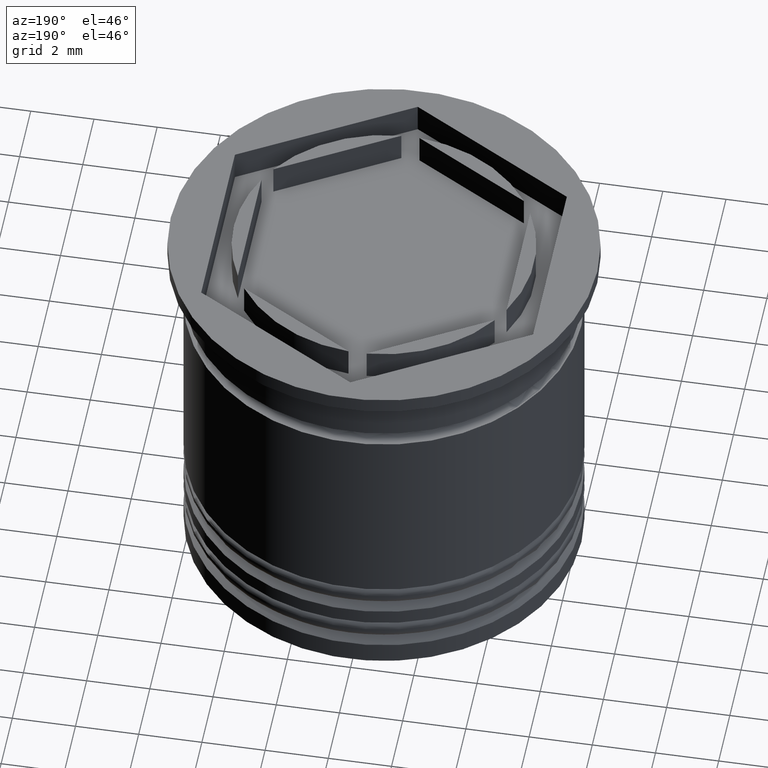
[diagram: clean part render]
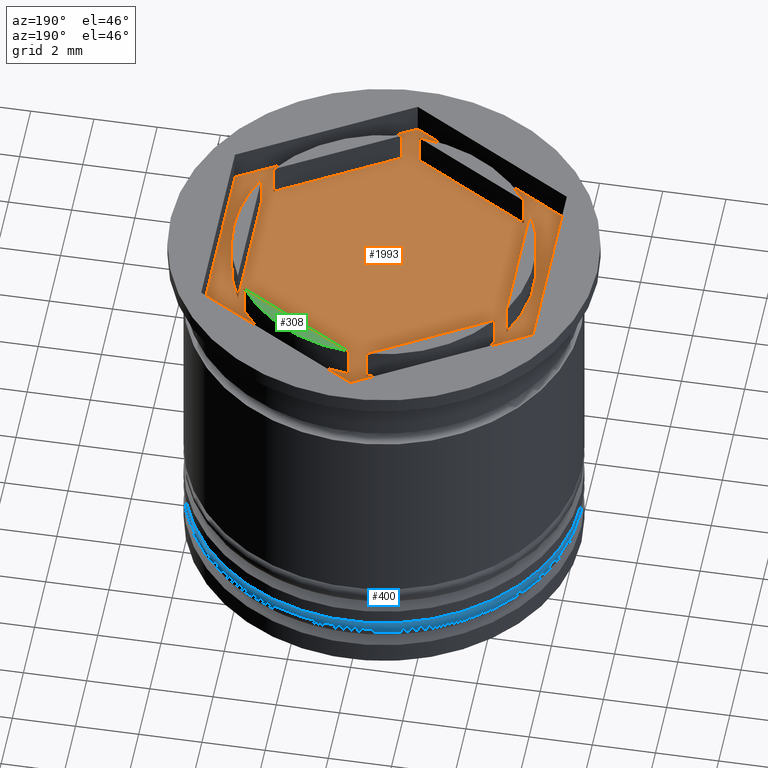
[diagram: same view with three faces highlighted in distinct colors, each labeled with its STEP entity id]
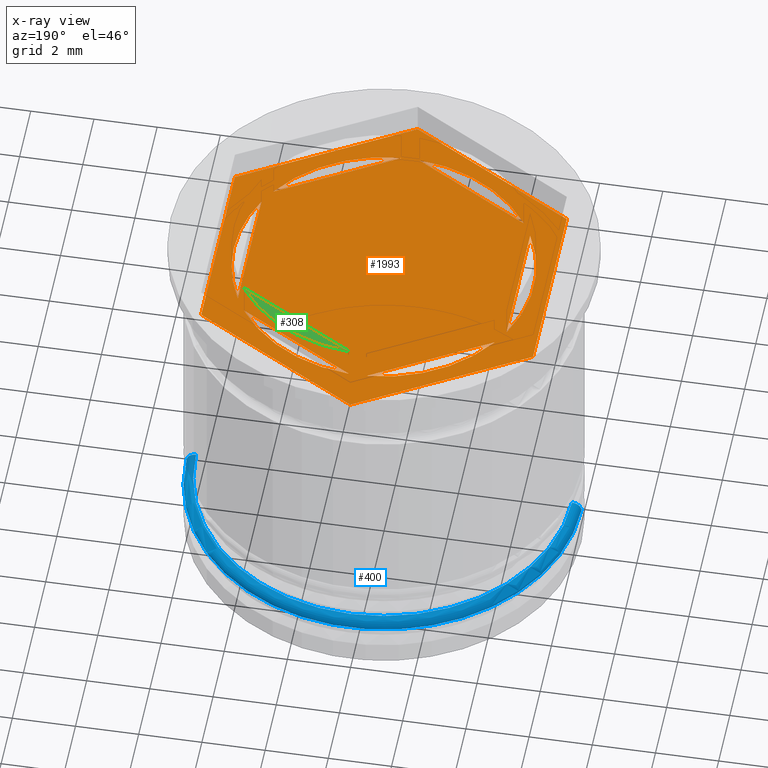
[diagram: x-ray of the same camera — body ghosted, the three highlighted faces saturated]
A machine part, auxiliary view with three faces highlighted in distinct colors.
The next image is the same camera in x-ray (body ghosted, the three faces saturated) — at least one of them is partly hidden behind the body in this view.
Their STEP definitions:

[orange] entity #1993 — the highlighted planar face has unit normal (-0, 0, 1).
#3 = EDGE_CURVE ( 'NONE', #1933, #1776, #1241, .T. ) ;
#13 = CARTESIAN_POINT ( 'NONE',  ( 2.624999999999999112, -4.546633369868300356, -1.000000000000000000 ) ) ;
#15 = DIRECTION ( 'NONE',  ( 1.000000000000000000, 0.000000000000000000, 0.000000000000000000 ) ) ;
#25 = VECTOR ( 'NONE', #805, 1000.000000000000000 ) ;
#31 = CARTESIAN_POINT ( 'NONE',  ( 5.249999999999997335, 3.031088913245536975, -1.000000000000000000 ) ) ;
#44 = CARTESIAN_POINT ( 'NONE',  ( 2.624999999999999112, 4.546633369868303021, -1.000000000000000000 ) ) ;
#53 = DIRECTION ( 'NONE',  ( -0.8660254037844387076, 0.4999999999999998890, 0.000000000000000000 ) ) ;
#68 = CARTESIAN_POINT ( 'NONE',  ( -4.249999999999998224, -2.121320343559642829, -1.000000000000000888 ) ) ;
#81 = EDGE_CURVE ( 'NONE', #1357, #1456, #1025, .T. ) ;
#91 = VECTOR ( 'NONE', #1859, 999.9999999999998863 ) ;
#94 = AXIS2_PLACEMENT_3D ( 'NONE', #795, #1395, #15 ) ;
#97 = AXIS2_PLACEMENT_3D ( 'NONE', #672, #511, #1604 ) ;
#108 = ORIENTED_EDGE ( 'NONE', *, *, #598, .F. ) ;
#131 = ORIENTED_EDGE ( 'NONE', *, *, #433, .F. ) ;
#139 = CARTESIAN_POINT ( 'NONE',  ( 4.249999999999997335, -2.453738644055908580, -1.000000000000000888 ) ) ;
#142 = DIRECTION ( 'NONE',  ( -0.000000000000000000, 0.000000000000000000, 1.000000000000000000 ) ) ;
#155 = LINE ( 'NONE', #776, #193 ) ;
#157 = VECTOR ( 'NONE', #1097, 1000.000000000000000 ) ;
#163 = DIRECTION ( 'NONE',  ( -0.8660254037844387076, -0.4999999999999999445, 0.000000000000000000 ) ) ;
#170 = DIRECTION ( 'NONE',  ( 0.8660254037844388186, -0.4999999999999996669, 0.000000000000000000 ) ) ;
#189 = EDGE_CURVE ( 'NONE', #384, #1573, #1910, .T. ) ;
#193 = VECTOR ( 'NONE', #358, 999.9999999999998863 ) ;
#263 = VECTOR ( 'NONE', #163, 999.9999999999998863 ) ;
#264 = VERTEX_POINT ( 'NONE', #685 ) ;
#265 = VECTOR ( 'NONE', #1747, 1000.000000000000000 ) ;
#306 = LINE ( 'NONE', #1518, #1324 ) ;
#321 = CARTESIAN_POINT ( 'NONE',  ( 0.000000000000000000, 6.062177826491069510, -1.000000000000000000 ) ) ;
#339 = CARTESIAN_POINT ( 'NONE',  ( 4.249999999999997335, -2.121320343559645494, -1.000000000000000888 ) ) ;
#350 = DIRECTION ( 'NONE',  ( -0.000000000000000000, 0.000000000000000000, 1.000000000000000000 ) ) ;
#358 = DIRECTION ( 'NONE',  ( -0.8660254037844387076, -0.5000000000000001110, 0.000000000000000000 ) ) ;
#384 = VERTEX_POINT ( 'NONE', #1652 ) ;
#392 = PLANE ( 'NONE',  #1967 ) ;
#406 = VERTEX_POINT ( 'NONE', #1128 ) ;
#433 = EDGE_CURVE ( 'NONE', #710, #751, #1104, .T. ) ;
#434 = EDGE_LOOP ( 'NONE', ( #1151, #738, #1905, #1422, #744, #802 ) ) ;
#456 = EDGE_LOOP ( 'NONE', ( #1515, #1046 ) ) ;
#458 = CARTESIAN_POINT ( 'NONE',  ( 0.000000000000000000, 0.000000000000000000, -1.000000000000000000 ) ) ;
#511 = DIRECTION ( 'NONE',  ( -0.000000000000000000, 0.000000000000000000, 1.000000000000000000 ) ) ;
#521 = LINE ( 'NONE', #1090, #91 ) ;
#529 = CARTESIAN_POINT ( 'NONE',  ( -2.624999999999999112, 4.546633369868302132, -1.000000000000000000 ) ) ;
#555 = DIRECTION ( 'NONE',  ( -0.000000000000000000, 0.000000000000000000, 1.000000000000000000 ) ) ;
#571 = FACE_BOUND ( 'NONE', #715, .T. ) ;
#598 = EDGE_CURVE ( 'NONE', #912, #264, #155, .T. ) ;
#607 = EDGE_CURVE ( 'NONE', #1573, #922, #945, .T. ) ;
#635 = EDGE_CURVE ( 'NONE', #1593, #406, #521, .T. ) ;
#653 = CIRCLE ( 'NONE', #1637, 4.749999999999999112 ) ;
#654 = VECTOR ( 'NONE', #1110, 1000.000000000000000 ) ;
#672 = CARTESIAN_POINT ( 'NONE',  ( 0.000000000000000000, 0.000000000000000000, -1.000000000000000000 ) ) ;
#676 = CARTESIAN_POINT ( 'NONE',  ( 0.000000000000000000, 0.000000000000000000, -1.000000000000000000 ) ) ;
#685 = CARTESIAN_POINT ( 'NONE',  ( 0.2878826929126148682, -4.741268137863684728, -1.000000000000000888 ) ) ;
#692 = DIRECTION ( 'NONE',  ( 1.000000000000000000, 0.000000000000000000, 0.000000000000000000 ) ) ;
#703 = FACE_BOUND ( 'NONE', #456, .T. ) ;
#710 = VERTEX_POINT ( 'NONE', #68 ) ;
#715 = EDGE_LOOP ( 'NONE', ( #1613, #108 ) ) ;
#738 = ORIENTED_EDGE ( 'NONE', *, *, #607, .T. ) ;
#742 = EDGE_LOOP ( 'NONE', ( #974, #1526, #1488 ) ) ;
#744 = ORIENTED_EDGE ( 'NONE', *, *, #635, .T. ) ;
#751 = VERTEX_POINT ( 'NONE', #1654 ) ;
#763 = CARTESIAN_POINT ( 'NONE',  ( 4.249999999999998224, 2.453738644055910356, -1.000000000000000888 ) ) ;
#776 = CARTESIAN_POINT ( 'NONE',  ( -1.671110122936318010E-17, -4.907477288111817160, -1.000000000000000888 ) ) ;
#795 = CARTESIAN_POINT ( 'NONE',  ( 0.000000000000000000, 0.000000000000000000, -1.000000000000000000 ) ) ;
#802 = ORIENTED_EDGE ( 'NONE', *, *, #1243, .T. ) ;
#805 = DIRECTION ( 'NONE',  ( 0.000000000000000000, 1.000000000000000000, 0.000000000000000000 ) ) ;
#808 = CIRCLE ( 'NONE', #97, 4.749999999999999112 ) ;
#810 = DIRECTION ( 'NONE',  ( 1.000000000000000000, 0.000000000000000000, 0.000000000000000000 ) ) ;
#816 = CARTESIAN_POINT ( 'NONE',  ( -5.249999999999999112, -3.031088913245535199, -1.000000000000000000 ) ) ;
#820 = ORIENTED_EDGE ( 'NONE', *, *, #1572, .F. ) ;
#833 = EDGE_CURVE ( 'NONE', #751, #710, #1667, .T. ) ;
#843 = CIRCLE ( 'NONE', #1028, 4.749999999999999112 ) ;
#847 = FACE_BOUND ( 'NONE', #1502, .T. ) ;
#863 = FACE_BOUND ( 'NONE', #1084, .T. ) ;
#904 = ORIENTED_EDGE ( 'NONE', *, *, #81, .F. ) ;
#912 = VERTEX_POINT ( 'NONE', #1116 ) ;
#922 = VERTEX_POINT ( 'NONE', #321 ) ;
#927 = EDGE_CURVE ( 'NONE', #264, #912, #843, .T. ) ;
#945 = LINE ( 'NONE', #44, #966 ) ;
#949 = CARTESIAN_POINT ( 'NONE',  ( 0.2878826929126141465, 4.741268137863683840, -1.000000000000000888 ) ) ;
#966 = VECTOR ( 'NONE', #53, 1000.000000000000114 ) ;
#969 = CIRCLE ( 'NONE', #94, 4.749999999999999112 ) ;
#974 = ORIENTED_EDGE ( 'NONE', *, *, #1842, .F. ) ;
#984 = EDGE_CURVE ( 'NONE', #1585, #1668, #969, .T. ) ;
#994 = EDGE_CURVE ( 'NONE', #922, #1030, #1887, .T. ) ;
#1000 = VECTOR ( 'NONE', #170, 1000.000000000000000 ) ;
#1023 = ORIENTED_EDGE ( 'NONE', *, *, #1575, .F. ) ;
#1025 = CIRCLE ( 'NONE', #1055, 4.749999999999999112 ) ;
#1028 = AXIS2_PLACEMENT_3D ( 'NONE', #676, #1565, #810 ) ;
#1030 = VERTEX_POINT ( 'NONE', #1317 ) ;
#1046 = ORIENTED_EDGE ( 'NONE', *, *, #3, .F. ) ;
#1055 = AXIS2_PLACEMENT_3D ( 'NONE', #1702, #350, #1443 ) ;
#1084 = EDGE_LOOP ( 'NONE', ( #1427, #1023 ) ) ;
#1090 = CARTESIAN_POINT ( 'NONE',  ( -2.624999999999999556, -4.546633369868303021, -1.000000000000000000 ) ) ;
#1097 = DIRECTION ( 'NONE',  ( 0.000000000000000000, 1.000000000000000000, -0.000000000000000000 ) ) ;
#1104 = LINE ( 'NONE', #1716, #25 ) ;
#1110 = DIRECTION ( 'NONE',  ( 0.000000000000000000, -1.000000000000000000, 0.000000000000000000 ) ) ;
#1111 = DIRECTION ( 'NONE',  ( -0.8660254037844387076, 0.4999999999999997224, 0.000000000000000000 ) ) ;
#1113 = CARTESIAN_POINT ( 'NONE',  ( -0.2878826929126153678, 4.741268137863683840, -1.000000000000000888 ) ) ;
#1116 = CARTESIAN_POINT ( 'NONE',  ( 3.962117307087385409, -2.619947794304039679, -1.000000000000000888 ) ) ;
#1120 = EDGE_CURVE ( 'NONE', #1522, #1866, #1849, .T. ) ;
#1128 = CARTESIAN_POINT ( 'NONE',  ( -4.336808689942017736E-16, -6.062177826491070398, -1.000000000000000000 ) ) ;
#1151 = ORIENTED_EDGE ( 'NONE', *, *, #189, .T. ) ;
#1241 = LINE ( 'NONE', #763, #1000 ) ;
#1243 = EDGE_CURVE ( 'NONE', #406, #384, #1393, .T. ) ;
#1249 = DIRECTION ( 'NONE',  ( -0.000000000000000000, 0.000000000000000000, 1.000000000000000000 ) ) ;
#1250 = CARTESIAN_POINT ( 'NONE',  ( -4.249999999999998224, -2.453738644055909912, -1.000000000000000888 ) ) ;
#1280 = CARTESIAN_POINT ( 'NONE',  ( 4.749999999999999112, 0.000000000000000000, -1.000000000000000000 ) ) ;
#1304 = FACE_OUTER_BOUND ( 'NONE', #434, .T. ) ;
#1317 = CARTESIAN_POINT ( 'NONE',  ( -5.249999999999999112, 3.031088913245535199, -1.000000000000000000 ) ) ;
#1324 = VECTOR ( 'NONE', #1869, 1000.000000000000114 ) ;
#1330 = EDGE_CURVE ( 'NONE', #1776, #1933, #808, .T. ) ;
#1347 = DIRECTION ( 'NONE',  ( 1.000000000000000000, 0.000000000000000000, 0.000000000000000000 ) ) ;
#1351 = CARTESIAN_POINT ( 'NONE',  ( 3.962117307087382745, 2.619947794304043232, -1.000000000000000888 ) ) ;
#1357 = VERTEX_POINT ( 'NONE', #1113 ) ;
#1381 = CARTESIAN_POINT ( 'NONE',  ( 4.249999999999998224, 2.121320343559643273, -1.000000000000000888 ) ) ;
#1393 = LINE ( 'NONE', #13, #265 ) ;
#1395 = DIRECTION ( 'NONE',  ( -0.000000000000000000, 0.000000000000000000, 1.000000000000000000 ) ) ;
#1408 = LINE ( 'NONE', #1699, #654 ) ;
#1412 = AXIS2_PLACEMENT_3D ( 'NONE', #1516, #142, #1347 ) ;
#1422 = ORIENTED_EDGE ( 'NONE', *, *, #1909, .T. ) ;
#1423 = DIRECTION ( 'NONE',  ( 1.000000000000000000, 0.000000000000000000, 0.000000000000000000 ) ) ;
#1427 = ORIENTED_EDGE ( 'NONE', *, *, #984, .F. ) ;
#1443 = DIRECTION ( 'NONE',  ( 1.000000000000000000, 0.000000000000000000, 0.000000000000000000 ) ) ;
#1451 = CIRCLE ( 'NONE', #1480, 4.749999999999999112 ) ;
#1456 = VERTEX_POINT ( 'NONE', #1457 ) ;
#1457 = CARTESIAN_POINT ( 'NONE',  ( -3.962117307087383633, 2.619947794304040567, -1.000000000000000888 ) ) ;
#1461 = ORIENTED_EDGE ( 'NONE', *, *, #833, .F. ) ;
#1469 = FACE_BOUND ( 'NONE', #1599, .T. ) ;
#1480 = AXIS2_PLACEMENT_3D ( 'NONE', #1549, #1249, #1423 ) ;
#1488 = ORIENTED_EDGE ( 'NONE', *, *, #1692, .F. ) ;
#1502 = EDGE_LOOP ( 'NONE', ( #1461, #131 ) ) ;
#1515 = ORIENTED_EDGE ( 'NONE', *, *, #1330, .F. ) ;
#1516 = CARTESIAN_POINT ( 'NONE',  ( 0.000000000000000000, 0.000000000000000000, -1.000000000000000000 ) ) ;
#1518 = CARTESIAN_POINT ( 'NONE',  ( 0.000000000000000000, 4.907477288111817160, -1.000000000000000888 ) ) ;
#1522 = VERTEX_POINT ( 'NONE', #1381 ) ;
#1526 = ORIENTED_EDGE ( 'NONE', *, *, #1120, .F. ) ;
#1549 = CARTESIAN_POINT ( 'NONE',  ( 0.000000000000000000, 0.000000000000000000, -1.000000000000000000 ) ) ;
#1565 = DIRECTION ( 'NONE',  ( -0.000000000000000000, 0.000000000000000000, 1.000000000000000000 ) ) ;
#1572 = EDGE_CURVE ( 'NONE', #1456, #1357, #306, .T. ) ;
#1573 = VERTEX_POINT ( 'NONE', #31 ) ;
#1575 = EDGE_CURVE ( 'NONE', #1668, #1585, #1711, .T. ) ;
#1585 = VERTEX_POINT ( 'NONE', #1721 ) ;
#1593 = VERTEX_POINT ( 'NONE', #816 ) ;
#1599 = EDGE_LOOP ( 'NONE', ( #904, #820 ) ) ;
#1604 = DIRECTION ( 'NONE',  ( 1.000000000000000000, 0.000000000000000000, 0.000000000000000000 ) ) ;
#1613 = ORIENTED_EDGE ( 'NONE', *, *, #927, .F. ) ;
#1620 = CARTESIAN_POINT ( 'NONE',  ( 0.000000000000000000, 0.000000000000000000, -1.000000000000000000 ) ) ;
#1637 = AXIS2_PLACEMENT_3D ( 'NONE', #458, #1971, #1811 ) ;
#1652 = CARTESIAN_POINT ( 'NONE',  ( 5.249999999999997335, -3.031088913245533423, -1.000000000000000000 ) ) ;
#1654 = CARTESIAN_POINT ( 'NONE',  ( -4.249999999999998224, 2.121320343559642829, -1.000000000000000888 ) ) ;
#1667 = CIRCLE ( 'NONE', #1412, 4.749999999999999112 ) ;
#1668 = VERTEX_POINT ( 'NONE', #1947 ) ;
#1692 = EDGE_CURVE ( 'NONE', #1923, #1522, #653, .T. ) ;
#1699 = CARTESIAN_POINT ( 'NONE',  ( -5.249999999999999112, 0.000000000000000000, -1.000000000000000000 ) ) ;
#1702 = CARTESIAN_POINT ( 'NONE',  ( 0.000000000000000000, 0.000000000000000000, -1.000000000000000000 ) ) ;
#1711 = LINE ( 'NONE', #1250, #1900 ) ;
#1716 = CARTESIAN_POINT ( 'NONE',  ( -4.249999999999998224, 2.453738644055908136, -1.000000000000000888 ) ) ;
#1721 = CARTESIAN_POINT ( 'NONE',  ( -3.962117307087382745, -2.619947794304042787, -1.000000000000000888 ) ) ;
#1727 = CARTESIAN_POINT ( 'NONE',  ( 5.249999999999997335, 0.000000000000000000, -1.000000000000000000 ) ) ;
#1747 = DIRECTION ( 'NONE',  ( 0.8660254037844385966, 0.5000000000000001110, 0.000000000000000000 ) ) ;
#1763 = VECTOR ( 'NONE', #1812, 1000.000000000000000 ) ;
#1776 = VERTEX_POINT ( 'NONE', #1351 ) ;
#1811 = DIRECTION ( 'NONE',  ( 1.000000000000000000, 0.000000000000000000, 0.000000000000000000 ) ) ;
#1812 = DIRECTION ( 'NONE',  ( -1.767428939690775795E-16, -1.000000000000000000, 0.000000000000000000 ) ) ;
#1842 = EDGE_CURVE ( 'NONE', #1866, #1923, #1451, .T. ) ;
#1849 = LINE ( 'NONE', #139, #1763 ) ;
#1859 = DIRECTION ( 'NONE',  ( 0.8660254037844387076, -0.4999999999999999445, 0.000000000000000000 ) ) ;
#1866 = VERTEX_POINT ( 'NONE', #339 ) ;
#1869 = DIRECTION ( 'NONE',  ( 0.8660254037844385966, 0.5000000000000001110, 0.000000000000000000 ) ) ;
#1887 = LINE ( 'NONE', #529, #263 ) ;
#1900 = VECTOR ( 'NONE', #1111, 1000.000000000000114 ) ;
#1905 = ORIENTED_EDGE ( 'NONE', *, *, #994, .T. ) ;
#1909 = EDGE_CURVE ( 'NONE', #1030, #1593, #1408, .T. ) ;
#1910 = LINE ( 'NONE', #1727, #157 ) ;
#1921 = FACE_BOUND ( 'NONE', #742, .T. ) ;
#1923 = VERTEX_POINT ( 'NONE', #1280 ) ;
#1933 = VERTEX_POINT ( 'NONE', #949 ) ;
#1947 = CARTESIAN_POINT ( 'NONE',  ( -0.2878826929126141465, -4.741268137863685617, -1.000000000000000888 ) ) ;
#1967 = AXIS2_PLACEMENT_3D ( 'NONE', #1620, #555, #692 ) ;
#1971 = DIRECTION ( 'NONE',  ( -0.000000000000000000, 0.000000000000000000, 1.000000000000000000 ) ) ;
#1993 = ADVANCED_FACE ( 'NONE', ( #1921, #571, #863, #847, #1469, #703, #1304 ), #392, .T. ) ;

[blue] entity #400 — the highlighted toroidal blend (fillet) surface has major radius 5.95 mm and minor (blend) radius 0.3 mm.
#14 = DIRECTION ( 'NONE',  ( -1.000000000000000000, 0.000000000000000000, 0.000000000000000000 ) ) ;
#29 = CIRCLE ( 'NONE', #1156, 0.2999999999999999334 ) ;
#59 = EDGE_LOOP ( 'NONE', ( #1980, #1013, #217, #1406 ) ) ;
#141 = VERTEX_POINT ( 'NONE', #411 ) ;
#182 = CARTESIAN_POINT ( 'NONE',  ( 0.000000000000000000, 0.000000000000000000, -10.80000000000000071 ) ) ;
#217 = ORIENTED_EDGE ( 'NONE', *, *, #894, .F. ) ;
#232 = FACE_OUTER_BOUND ( 'NONE', #59, .T. ) ;
#368 = CIRCLE ( 'NONE', #1031, 0.2999999999999999334 ) ;
#400 = ADVANCED_FACE ( 'NONE', ( #232 ), #1086, .T. ) ;
#411 = CARTESIAN_POINT ( 'NONE',  ( -6.250000000000000000, 7.654042494670957606E-16, -10.80000000000000071 ) ) ;
#461 = AXIS2_PLACEMENT_3D ( 'NONE', #1246, #787, #1429 ) ;
#495 = CIRCLE ( 'NONE', #1221, 5.950000000000000178 ) ;
#538 = DIRECTION ( 'NONE',  ( 0.000000000000000000, 0.000000000000000000, -1.000000000000000000 ) ) ;
#584 = CIRCLE ( 'NONE', #461, 6.250000000000000000 ) ;
#634 = VERTEX_POINT ( 'NONE', #1882 ) ;
#787 = DIRECTION ( 'NONE',  ( 0.000000000000000000, 0.000000000000000000, -1.000000000000000000 ) ) ;
#793 = CARTESIAN_POINT ( 'NONE',  ( 5.950000000000000178, 7.286648454926751965E-16, -10.80000000000000071 ) ) ;
#894 = EDGE_CURVE ( 'NONE', #141, #1274, #584, .T. ) ;
#901 = CARTESIAN_POINT ( 'NONE',  ( -5.950000000000000178, 0.000000000000000000, -10.50000000000000000 ) ) ;
#1002 = AXIS2_PLACEMENT_3D ( 'NONE', #182, #538, #14 ) ;
#1013 = ORIENTED_EDGE ( 'NONE', *, *, #1125, .T. ) ;
#1031 = AXIS2_PLACEMENT_3D ( 'NONE', #1700, #1051, #1525 ) ;
#1041 = VERTEX_POINT ( 'NONE', #901 ) ;
#1051 = DIRECTION ( 'NONE',  ( -0.000000000000000000, -1.000000000000000000, -0.000000000000000000 ) ) ;
#1086 = TOROIDAL_SURFACE ( 'NONE', #1002, 5.950000000000000178, 0.2999999999999999889 ) ;
#1125 = EDGE_CURVE ( 'NONE', #634, #1274, #29, .T. ) ;
#1156 = AXIS2_PLACEMENT_3D ( 'NONE', #793, #1705, #1373 ) ;
#1221 = AXIS2_PLACEMENT_3D ( 'NONE', #1389, #1838, #1672 ) ;
#1246 = CARTESIAN_POINT ( 'NONE',  ( 0.000000000000000000, 0.000000000000000000, -10.80000000000000071 ) ) ;
#1274 = VERTEX_POINT ( 'NONE', #1434 ) ;
#1373 = DIRECTION ( 'NONE',  ( -1.000000000000000000, -1.224646799147353207E-16, 0.000000000000000000 ) ) ;
#1389 = CARTESIAN_POINT ( 'NONE',  ( 0.000000000000000000, 0.000000000000000000, -10.50000000000000000 ) ) ;
#1406 = ORIENTED_EDGE ( 'NONE', *, *, #1510, .F. ) ;
#1429 = DIRECTION ( 'NONE',  ( -1.000000000000000000, 0.000000000000000000, 0.000000000000000000 ) ) ;
#1434 = CARTESIAN_POINT ( 'NONE',  ( 6.250000000000000000, 0.000000000000000000, -10.80000000000000071 ) ) ;
#1489 = EDGE_CURVE ( 'NONE', #634, #1041, #495, .T. ) ;
#1510 = EDGE_CURVE ( 'NONE', #1041, #141, #368, .T. ) ;
#1525 = DIRECTION ( 'NONE',  ( 0.000000000000000000, 0.000000000000000000, -1.000000000000000000 ) ) ;
#1672 = DIRECTION ( 'NONE',  ( -1.000000000000000000, 0.000000000000000000, 0.000000000000000000 ) ) ;
#1700 = CARTESIAN_POINT ( 'NONE',  ( -5.950000000000000178, 0.000000000000000000, -10.80000000000000071 ) ) ;
#1705 = DIRECTION ( 'NONE',  ( -1.224646799147353207E-16, 1.000000000000000000, 0.000000000000000000 ) ) ;
#1838 = DIRECTION ( 'NONE',  ( -0.000000000000000000, -0.000000000000000000, 1.000000000000000000 ) ) ;
#1882 = CARTESIAN_POINT ( 'NONE',  ( 5.950000000000000178, 7.470345474798855279E-16, -10.50000000000000000 ) ) ;
#1980 = ORIENTED_EDGE ( 'NONE', *, *, #1489, .F. ) ;

[green] entity #308 — the highlighted planar face has unit normal (0, -0, 1).
#83 = VERTEX_POINT ( 'NONE', #1746 ) ;
#158 = CARTESIAN_POINT ( 'NONE',  ( 0.000000000000000000, 0.000000000000000000, 0.000000000000000000 ) ) ;
#276 = FACE_OUTER_BOUND ( 'NONE', #682, .T. ) ;
#293 = AXIS2_PLACEMENT_3D ( 'NONE', #158, #481, #1195 ) ;
#308 = ADVANCED_FACE ( 'NONE', ( #276 ), #1333, .T. ) ;
#380 = EDGE_CURVE ( 'NONE', #1057, #83, #771, .T. ) ;
#481 = DIRECTION ( 'NONE',  ( -0.000000000000000000, 0.000000000000000000, 1.000000000000000000 ) ) ;
#578 = ORIENTED_EDGE ( 'NONE', *, *, #1109, .F. ) ;
#580 = AXIS2_PLACEMENT_3D ( 'NONE', #1201, #1813, #1211 ) ;
#682 = EDGE_LOOP ( 'NONE', ( #578, #1951 ) ) ;
#741 = LINE ( 'NONE', #1958, #934 ) ;
#771 = CIRCLE ( 'NONE', #293, 4.749999999999999112 ) ;
#934 = VECTOR ( 'NONE', #1091, 1000.000000000000000 ) ;
#1057 = VERTEX_POINT ( 'NONE', #1774 ) ;
#1091 = DIRECTION ( 'NONE',  ( -0.8660254037844388186, 0.4999999999999996669, 0.000000000000000000 ) ) ;
#1109 = EDGE_CURVE ( 'NONE', #1057, #83, #741, .T. ) ;
#1195 = DIRECTION ( 'NONE',  ( 1.000000000000000000, 0.000000000000000000, 0.000000000000000000 ) ) ;
#1201 = CARTESIAN_POINT ( 'NONE',  ( 0.000000000000000000, 0.000000000000000000, 0.000000000000000000 ) ) ;
#1211 = DIRECTION ( 'NONE',  ( 1.000000000000000000, 0.000000000000000000, 0.000000000000000000 ) ) ;
#1333 = PLANE ( 'NONE',  #580 ) ;
#1746 = CARTESIAN_POINT ( 'NONE',  ( 0.2878826929126133138, 4.741268137863685617, 0.000000000000000000 ) ) ;
#1774 = CARTESIAN_POINT ( 'NONE',  ( 3.962117307087382745, 2.619947794304043232, 0.000000000000000000 ) ) ;
#1813 = DIRECTION ( 'NONE',  ( 0.000000000000000000, -0.000000000000000000, 1.000000000000000000 ) ) ;
#1951 = ORIENTED_EDGE ( 'NONE', *, *, #380, .T. ) ;
#1958 = CARTESIAN_POINT ( 'NONE',  ( 2.124999999999997780, 3.680607966083863758, 0.000000000000000000 ) ) ;